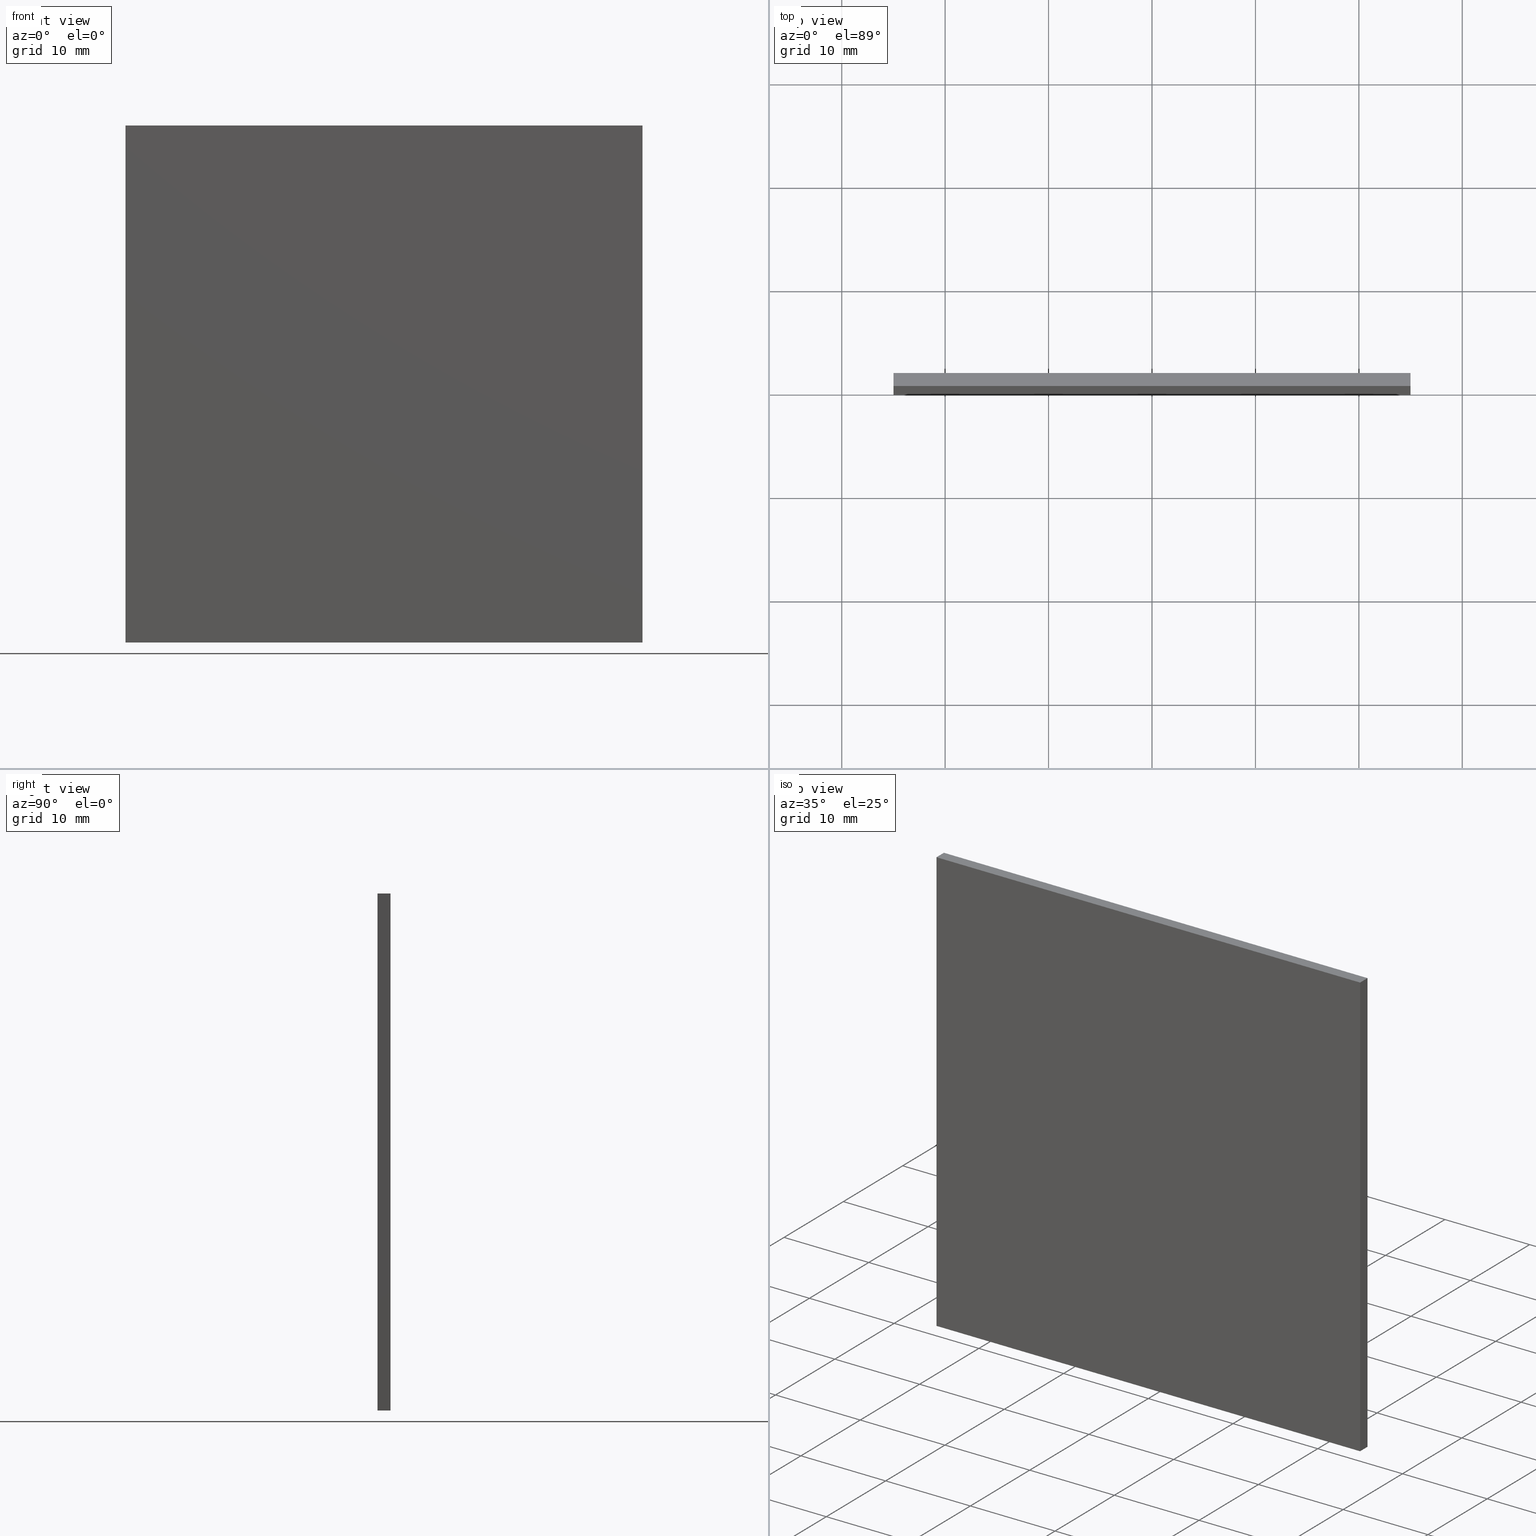
[diagram: canonical four-view strip — front | top / right | iso, engineering-drawing reading convention]
A machine part, canonical four-view strip (front | top / right | iso — engineering-drawing reading convention). The complete STEP part file that produces these views, byte-faithful:
ISO-10303-21;
HEADER;
FILE_DESCRIPTION (( 'STEP AP214' ),
    '1' );
FILE_NAME ('248619.STEP',
    '2019-08-06T06:50:13',
    ( 'user' ),
    ( '΢���й�' ),
    'SwSTEP 2.0',
    'SolidWorks 2016',
    '' );
FILE_SCHEMA (( 'AUTOMOTIVE_DESIGN' ));
ENDSEC;

DATA;
#1 = VECTOR ( 'NONE', #69, 1000.000000000000000 ) ;
#2 = VECTOR ( 'NONE', #171, 1000.000000000000000 ) ;
#3 = VECTOR ( 'NONE', #92, 1000.000000000000000 ) ;
#4 = LINE ( 'NONE', #67, #116 ) ;
#5 = EDGE_CURVE ( 'NONE', #188, #42, #57, .T. ) ;
#6 = PRODUCT_DEFINITION_SHAPE ( 'NONE', 'NONE',  #44 ) ;
#7 = VECTOR ( 'NONE', #97, 1000.000000000000000 ) ;
#8 = ADVANCED_FACE ( 'NONE', ( #71 ), #172, .F. ) ;
#9 = PRODUCT_RELATED_PRODUCT_CATEGORY ( 'part', '', ( #112 ) ) ;
#10 = SURFACE_STYLE_USAGE ( .BOTH. , #80 ) ;
#11 = AXIS2_PLACEMENT_3D ( 'NONE', #123, #194, #175 ) ;
#12 =( NAMED_UNIT ( * ) PLANE_ANGLE_UNIT ( ) SI_UNIT ( $, .RADIAN. ) );
#13 = EDGE_LOOP ( 'NONE', ( #152, #66, #130, #122 ) ) ;
#14 = VERTEX_POINT ( 'NONE', #107 ) ;
#15 = DIRECTION ( 'NONE',  ( 1.000000000000000000, -0.0000000000000000000, 0.0000000000000000000 ) ) ;
#16 = EDGE_CURVE ( 'NONE', #163, #188, #79, .T. ) ;
#17 = LINE ( 'NONE', #201, #136 ) ;
#18 = CARTESIAN_POINT ( 'NONE',  ( 0.0000000000000000000, 0.0000000000000000000, 0.0000000000000000000 ) ) ;
#19 = CLOSED_SHELL ( 'NONE', ( #8, #64, #28, #151, #181, #48 ) ) ;
#20 = PRODUCT_DEFINITION_FORMATION_WITH_SPECIFIED_SOURCE ( '�κ�', '', #112, .NOT_KNOWN. ) ;
#21 = CARTESIAN_POINT ( 'NONE',  ( 25.00000000000000000, 1.250000000000000000, 25.00000000000000000 ) ) ;
#22 = EDGE_CURVE ( 'NONE', #178, #14, #150, .T. ) ;
#23 =( LENGTH_UNIT ( ) NAMED_UNIT ( * ) SI_UNIT ( .MILLI., .METRE. ) );
#24 = VECTOR ( 'NONE', #154, 1000.000000000000000 ) ;
#25 = FACE_OUTER_BOUND ( 'NONE', #13, .T. ) ;
#26 = DIRECTION ( 'NONE',  ( 0.0000000000000000000, 0.0000000000000000000, 1.000000000000000000 ) ) ;
#27 = CARTESIAN_POINT ( 'NONE',  ( 25.00000000000000000, 0.0000000000000000000, -25.00000000000000000 ) ) ;
#28 = ADVANCED_FACE ( 'NONE', ( #37 ), #91, .F. ) ;
#29 = EDGE_CURVE ( 'NONE', #14, #108, #182, .T. ) ;
#30 = CARTESIAN_POINT ( 'NONE',  ( -25.00000000000000000, 0.0000000000000000000, 25.00000000000000000 ) ) ;
#31 = DIRECTION ( 'NONE',  ( 1.000000000000000000, 0.0000000000000000000, -0.0000000000000000000 ) ) ;
#32 = DIRECTION ( 'NONE',  ( -0.0000000000000000000, -1.000000000000000000, -0.0000000000000000000 ) ) ;
#33 = ORIENTED_EDGE ( 'NONE', *, *, #197, .F. ) ;
#34 = LINE ( 'NONE', #173, #47 ) ;
#35 = ORIENTED_EDGE ( 'NONE', *, *, #39, .F. ) ;
#36 = DIRECTION ( 'NONE',  ( 0.0000000000000000000, 0.0000000000000000000, 1.000000000000000000 ) ) ;
#37 = FACE_OUTER_BOUND ( 'NONE', #81, .T. ) ;
#38 = FACE_OUTER_BOUND ( 'NONE', #50, .T. ) ;
#39 = EDGE_CURVE ( 'NONE', #178, #163, #134, .T. ) ;
#40 = LINE ( 'NONE', #170, #2 ) ;
#41 = EDGE_LOOP ( 'NONE', ( #156, #73, #147, #60 ) ) ;
#42 = VERTEX_POINT ( 'NONE', #137 ) ;
#43 = LINE ( 'NONE', #111, #77 ) ;
#44 = PRODUCT_DEFINITION ( 'δ֪', '', #20, #58 ) ;
#45 = EDGE_CURVE ( 'NONE', #42, #98, #40, .T. ) ;
#46 = EDGE_LOOP ( 'NONE', ( #142, #200, #115, #117 ) ) ;
#47 = VECTOR ( 'NONE', #54, 1000.000000000000000 ) ;
#48 = ADVANCED_FACE ( 'NONE', ( #110 ), #139, .T. ) ;
#49 =( GEOMETRIC_REPRESENTATION_CONTEXT ( 3 ) GLOBAL_UNCERTAINTY_ASSIGNED_CONTEXT ( ( #93 ) ) GLOBAL_UNIT_ASSIGNED_CONTEXT ( ( #157, #159, #183 ) ) REPRESENTATION_CONTEXT ( 'NONE', 'WORKASPACE' ) );
#50 = EDGE_LOOP ( 'NONE', ( #166, #140, #106, #191 ) ) ;
#51 = PRESENTATION_LAYER_ASSIGNMENT (  '', '', ( #155 ) ) ;
#52 = EDGE_CURVE ( 'NONE', #98, #163, #82, .T. ) ;
#53 = DIRECTION ( 'NONE',  ( -0.0000000000000000000, -1.000000000000000000, -0.0000000000000000000 ) ) ;
#54 = DIRECTION ( 'NONE',  ( 0.0000000000000000000, 0.0000000000000000000, -1.000000000000000000 ) ) ;
#55 = CARTESIAN_POINT ( 'NONE',  ( 0.0000000000000000000, 0.0000000000000000000, 0.0000000000000000000 ) ) ;
#56 = PLANE ( 'NONE',  #144 ) ;
#57 = LINE ( 'NONE', #143, #3 ) ;
#58 = PRODUCT_DEFINITION_CONTEXT ( 'detailed design', #158, 'design' ) ;
#59 =( GEOMETRIC_REPRESENTATION_CONTEXT ( 3 ) GLOBAL_UNCERTAINTY_ASSIGNED_CONTEXT ( ( #167 ) ) GLOBAL_UNIT_ASSIGNED_CONTEXT ( ( #23, #192, #153 ) ) REPRESENTATION_CONTEXT ( 'NONE', 'WORKASPACE' ) );
#60 = ORIENTED_EDGE ( 'NONE', *, *, #186, .T. ) ;
#61 = ADVANCED_BREP_SHAPE_REPRESENTATION ( '248619', ( #104, #196 ), #131 ) ;
#62 = DIRECTION ( 'NONE',  ( -1.000000000000000000, -0.0000000000000000000, -0.0000000000000000000 ) ) ;
#63 = PLANE ( 'NONE',  #11 ) ;
#64 = ADVANCED_FACE ( 'NONE', ( #129 ), #76, .F. ) ;
#65 = DIRECTION ( 'NONE',  ( 0.0000000000000000000, 0.0000000000000000000, 1.000000000000000000 ) ) ;
#66 = ORIENTED_EDGE ( 'NONE', *, *, #186, .F. ) ;
#67 = CARTESIAN_POINT ( 'NONE',  ( 25.00000000000000000, 1.250000000000000000, 25.00000000000000000 ) ) ;
#68 = CARTESIAN_POINT ( 'NONE',  ( -25.00000000000000000, 0.0000000000000000000, 25.00000000000000000 ) ) ;
#69 = DIRECTION ( 'NONE',  ( -0.0000000000000000000, -0.0000000000000000000, 1.000000000000000000 ) ) ;
#70 = ORIENTED_EDGE ( 'NONE', *, *, #189, .T. ) ;
#71 = FACE_OUTER_BOUND ( 'NONE', #41, .T. ) ;
#72 = MECHANICAL_DESIGN_GEOMETRIC_PRESENTATION_REPRESENTATION (  '', ( #148 ), #59 ) ;
#73 = ORIENTED_EDGE ( 'NONE', *, *, #189, .F. ) ;
#74 = CARTESIAN_POINT ( 'NONE',  ( -25.00000000000000000, 1.250000000000000000, -25.00000000000000000 ) ) ;
#75 = DIRECTION ( 'NONE',  ( 0.0000000000000000000, 0.0000000000000000000, -1.000000000000000000 ) ) ;
#76 = PLANE ( 'NONE',  #99 ) ;
#77 = VECTOR ( 'NONE', #32, 1000.000000000000000 ) ;
#78 = FILL_AREA_STYLE_COLOUR ( '', #100 ) ;
#79 = LINE ( 'NONE', #68, #160 ) ;
#80 = SURFACE_SIDE_STYLE ('',( #88 ) ) ;
#81 = EDGE_LOOP ( 'NONE', ( #90, #33, #187, #180 ) ) ;
#82 = LINE ( 'NONE', #102, #190 ) ;
#83 = ORIENTED_EDGE ( 'NONE', *, *, #52, .T. ) ;
#84 = CARTESIAN_POINT ( 'NONE',  ( -25.00000000000000000, 1.250000000000000000, -25.00000000000000000 ) ) ;
#85 = DIRECTION ( 'NONE',  ( 0.0000000000000000000, -1.000000000000000000, 0.0000000000000000000 ) ) ;
#86 = VECTOR ( 'NONE', #62, 1000.000000000000000 ) ;
#87 = DIRECTION ( 'NONE',  ( -0.0000000000000000000, -0.0000000000000000000, 1.000000000000000000 ) ) ;
#88 = SURFACE_STYLE_FILL_AREA ( #94 ) ;
#89 = DIRECTION ( 'NONE',  ( -0.0000000000000000000, -1.000000000000000000, -0.0000000000000000000 ) ) ;
#90 = ORIENTED_EDGE ( 'NONE', *, *, #16, .T. ) ;
#91 = PLANE ( 'NONE',  #133 ) ;
#92 = DIRECTION ( 'NONE',  ( 1.000000000000000000, 0.0000000000000000000, 0.0000000000000000000 ) ) ;
#93 = UNCERTAINTY_MEASURE_WITH_UNIT (LENGTH_MEASURE( 1.000000000000000100E-005 ), #157, 'distance_accuracy_value', 'NONE');
#94 = FILL_AREA_STYLE ('',( #141 ) ) ;
#95 = EDGE_CURVE ( 'NONE', #108, #135, #34, .T. ) ;
#96 = COLOUR_RGB ( '',1.000000000000000000, 1.000000000000000000, 1.000000000000000000 ) ;
#97 = DIRECTION ( 'NONE',  ( -0.0000000000000000000, -1.000000000000000000, -0.0000000000000000000 ) ) ;
#98 = VERTEX_POINT ( 'NONE', #27 ) ;
#99 = AXIS2_PLACEMENT_3D ( 'NONE', #125, #65, #31 ) ;
#100 = COLOUR_RGB ( '',1.000000000000000000, 1.000000000000000000, 1.000000000000000000 ) ;
#101 = FILL_AREA_STYLE ('',( #78 ) ) ;
#102 = CARTESIAN_POINT ( 'NONE',  ( -25.00000000000000000, 0.0000000000000000000, -25.00000000000000000 ) ) ;
#103 = DIRECTION ( 'NONE',  ( -1.000000000000000000, 0.0000000000000000000, -0.0000000000000000000 ) ) ;
#104 = MANIFOLD_SOLID_BREP ( '͹̨-����1', #19 ) ;
#105 = SURFACE_STYLE_USAGE ( .BOTH. , #176 ) ;
#106 = ORIENTED_EDGE ( 'NONE', *, *, #22, .T. ) ;
#107 = CARTESIAN_POINT ( 'NONE',  ( -25.00000000000000000, 1.250000000000000000, 25.00000000000000000 ) ) ;
#108 = VERTEX_POINT ( 'NONE', #21 ) ;
#109 = DIRECTION ( 'NONE',  ( 0.0000000000000000000, 0.0000000000000000000, -1.000000000000000000 ) ) ;
#110 = FACE_OUTER_BOUND ( 'NONE', #46, .T. ) ;
#111 = CARTESIAN_POINT ( 'NONE',  ( 25.00000000000000000, 1.250000000000000000, -25.00000000000000000 ) ) ;
#112 = PRODUCT ( '248619', '248619', '', ( #124 ) ) ;
#113 = AXIS2_PLACEMENT_3D ( 'NONE', #18, #85, #161 ) ;
#114 = EDGE_LOOP ( 'NONE', ( #83, #35, #185, #70 ) ) ;
#115 = ORIENTED_EDGE ( 'NONE', *, *, #16, .F. ) ;
#116 = VECTOR ( 'NONE', #89, 1000.000000000000000 ) ;
#117 = ORIENTED_EDGE ( 'NONE', *, *, #52, .F. ) ;
#118 = CARTESIAN_POINT ( 'NONE',  ( -25.00000000000000000, 1.250000000000000000, 25.00000000000000000 ) ) ;
#119 = CARTESIAN_POINT ( 'NONE',  ( -25.00000000000000000, 1.250000000000000000, 25.00000000000000000 ) ) ;
#120 = DIRECTION ( 'NONE',  ( -1.000000000000000000, -0.0000000000000000000, -0.0000000000000000000 ) ) ;
#121 = CARTESIAN_POINT ( 'NONE',  ( -25.00000000000000000, 0.0000000000000000000, -25.00000000000000000 ) ) ;
#122 = ORIENTED_EDGE ( 'NONE', *, *, #197, .T. ) ;
#123 = CARTESIAN_POINT ( 'NONE',  ( 0.0000000000000000000, 1.250000000000000000, 0.0000000000000000000 ) ) ;
#124 = PRODUCT_CONTEXT ( 'NONE', #198, 'mechanical' ) ;
#125 = CARTESIAN_POINT ( 'NONE',  ( -25.00000000000000000, 1.250000000000000000, -25.00000000000000000 ) ) ;
#126 = DIRECTION ( 'NONE',  ( 1.000000000000000000, 0.0000000000000000000, 0.0000000000000000000 ) ) ;
#127 =( LENGTH_UNIT ( ) NAMED_UNIT ( * ) SI_UNIT ( .MILLI., .METRE. ) );
#128 = CARTESIAN_POINT ( 'NONE',  ( -25.00000000000000000, 1.250000000000000000, -25.00000000000000000 ) ) ;
#129 = FACE_OUTER_BOUND ( 'NONE', #114, .T. ) ;
#130 = ORIENTED_EDGE ( 'NONE', *, *, #29, .F. ) ;
#131 =( GEOMETRIC_REPRESENTATION_CONTEXT ( 3 ) GLOBAL_UNCERTAINTY_ASSIGNED_CONTEXT ( ( #202 ) ) GLOBAL_UNIT_ASSIGNED_CONTEXT ( ( #127, #12, #168 ) ) REPRESENTATION_CONTEXT ( 'NONE', 'WORKASPACE' ) );
#132 = PRESENTATION_STYLE_ASSIGNMENT (( #105 ) ) ;
#133 = AXIS2_PLACEMENT_3D ( 'NONE', #119, #15, #75 ) ;
#134 = LINE ( 'NONE', #84, #7 ) ;
#135 = VERTEX_POINT ( 'NONE', #174 ) ;
#136 = VECTOR ( 'NONE', #53, 1000.000000000000000 ) ;
#137 = CARTESIAN_POINT ( 'NONE',  ( 25.00000000000000000, 0.0000000000000000000, 25.00000000000000000 ) ) ;
#138 = AXIS2_PLACEMENT_3D ( 'NONE', #145, #199, #36 ) ;
#139 = PLANE ( 'NONE',  #113 ) ;
#140 = ORIENTED_EDGE ( 'NONE', *, *, #149, .T. ) ;
#141 = FILL_AREA_STYLE_COLOUR ( '', #96 ) ;
#142 = ORIENTED_EDGE ( 'NONE', *, *, #45, .F. ) ;
#143 = CARTESIAN_POINT ( 'NONE',  ( -25.00000000000000000, 0.0000000000000000000, 25.00000000000000000 ) ) ;
#144 = AXIS2_PLACEMENT_3D ( 'NONE', #118, #109, #103 ) ;
#145 = CARTESIAN_POINT ( 'NONE',  ( 25.00000000000000000, 1.250000000000000000, 25.00000000000000000 ) ) ;
#146 = CARTESIAN_POINT ( 'NONE',  ( -25.00000000000000000, 1.250000000000000000, 25.00000000000000000 ) ) ;
#147 = ORIENTED_EDGE ( 'NONE', *, *, #95, .F. ) ;
#148 = STYLED_ITEM ( 'NONE', ( #179 ), #61 ) ;
#149 = EDGE_CURVE ( 'NONE', #135, #178, #164, .T. ) ;
#150 = LINE ( 'NONE', #184, #1 ) ;
#151 = ADVANCED_FACE ( 'NONE', ( #25 ), #56, .F. ) ;
#152 = ORIENTED_EDGE ( 'NONE', *, *, #5, .T. ) ;
#153 =( NAMED_UNIT ( * ) SI_UNIT ( $, .STERADIAN. ) SOLID_ANGLE_UNIT ( ) );
#154 = DIRECTION ( 'NONE',  ( 1.000000000000000000, 0.0000000000000000000, 0.0000000000000000000 ) ) ;
#155 = STYLED_ITEM ( 'NONE', ( #132 ), #104 ) ;
#156 = ORIENTED_EDGE ( 'NONE', *, *, #45, .T. ) ;
#157 =( LENGTH_UNIT ( ) NAMED_UNIT ( * ) SI_UNIT ( .MILLI., .METRE. ) );
#158 = APPLICATION_CONTEXT ( 'automotive_design' ) ;
#159 =( NAMED_UNIT ( * ) PLANE_ANGLE_UNIT ( ) SI_UNIT ( $, .RADIAN. ) );
#160 = VECTOR ( 'NONE', #87, 1000.000000000000000 ) ;
#161 = DIRECTION ( 'NONE',  ( 0.0000000000000000000, -0.0000000000000000000, -1.000000000000000000 ) ) ;
#162 = SURFACE_STYLE_FILL_AREA ( #101 ) ;
#163 = VERTEX_POINT ( 'NONE', #121 ) ;
#164 = LINE ( 'NONE', #74, #86 ) ;
#165 = MECHANICAL_DESIGN_GEOMETRIC_PRESENTATION_REPRESENTATION (  '', ( #155 ), #49 ) ;
#166 = ORIENTED_EDGE ( 'NONE', *, *, #95, .T. ) ;
#167 = UNCERTAINTY_MEASURE_WITH_UNIT (LENGTH_MEASURE( 1.000000000000000100E-005 ), #23, 'distance_accuracy_value', 'NONE');
#168 =( NAMED_UNIT ( * ) SI_UNIT ( $, .STERADIAN. ) SOLID_ANGLE_UNIT ( ) );
#169 = APPLICATION_PROTOCOL_DEFINITION ( 'draft international standard', 'automotive_design', 1998, #198 ) ;
#170 = CARTESIAN_POINT ( 'NONE',  ( 25.00000000000000000, 0.0000000000000000000, 25.00000000000000000 ) ) ;
#171 = DIRECTION ( 'NONE',  ( 0.0000000000000000000, 0.0000000000000000000, -1.000000000000000000 ) ) ;
#172 = PLANE ( 'NONE',  #138 ) ;
#173 = CARTESIAN_POINT ( 'NONE',  ( 25.00000000000000000, 1.250000000000000000, 25.00000000000000000 ) ) ;
#174 = CARTESIAN_POINT ( 'NONE',  ( 25.00000000000000000, 1.250000000000000000, -25.00000000000000000 ) ) ;
#175 = DIRECTION ( 'NONE',  ( 0.0000000000000000000, -0.0000000000000000000, -1.000000000000000000 ) ) ;
#176 = SURFACE_SIDE_STYLE ('',( #162 ) ) ;
#177 = PRESENTATION_LAYER_ASSIGNMENT (  '', '', ( #148 ) ) ;
#178 = VERTEX_POINT ( 'NONE', #128 ) ;
#179 = PRESENTATION_STYLE_ASSIGNMENT (( #10 ) ) ;
#180 = ORIENTED_EDGE ( 'NONE', *, *, #39, .T. ) ;
#181 = ADVANCED_FACE ( 'NONE', ( #38 ), #63, .F. ) ;
#182 = LINE ( 'NONE', #146, #24 ) ;
#183 =( NAMED_UNIT ( * ) SI_UNIT ( $, .STERADIAN. ) SOLID_ANGLE_UNIT ( ) );
#184 = CARTESIAN_POINT ( 'NONE',  ( -25.00000000000000000, 1.250000000000000000, 25.00000000000000000 ) ) ;
#185 = ORIENTED_EDGE ( 'NONE', *, *, #149, .F. ) ;
#186 = EDGE_CURVE ( 'NONE', #108, #42, #4, .T. ) ;
#187 = ORIENTED_EDGE ( 'NONE', *, *, #22, .F. ) ;
#188 = VERTEX_POINT ( 'NONE', #30 ) ;
#189 = EDGE_CURVE ( 'NONE', #135, #98, #43, .T. ) ;
#190 = VECTOR ( 'NONE', #120, 1000.000000000000000 ) ;
#191 = ORIENTED_EDGE ( 'NONE', *, *, #29, .T. ) ;
#192 =( NAMED_UNIT ( * ) PLANE_ANGLE_UNIT ( ) SI_UNIT ( $, .RADIAN. ) );
#193 = SHAPE_DEFINITION_REPRESENTATION ( #6, #61 ) ;
#194 = DIRECTION ( 'NONE',  ( 0.0000000000000000000, -1.000000000000000000, 0.0000000000000000000 ) ) ;
#195 = APPLICATION_PROTOCOL_DEFINITION ( 'draft international standard', 'automotive_design', 1998, #158 ) ;
#196 = AXIS2_PLACEMENT_3D ( 'NONE', #55, #26, #126 ) ;
#197 = EDGE_CURVE ( 'NONE', #14, #188, #17, .T. ) ;
#198 = APPLICATION_CONTEXT ( 'automotive_design' ) ;
#199 = DIRECTION ( 'NONE',  ( -1.000000000000000000, 0.0000000000000000000, 0.0000000000000000000 ) ) ;
#200 = ORIENTED_EDGE ( 'NONE', *, *, #5, .F. ) ;
#201 = CARTESIAN_POINT ( 'NONE',  ( -25.00000000000000000, 1.250000000000000000, 25.00000000000000000 ) ) ;
#202 = UNCERTAINTY_MEASURE_WITH_UNIT (LENGTH_MEASURE( 1.000000000000000100E-005 ), #127, 'distance_accuracy_value', 'NONE');
ENDSEC;
END-ISO-10303-21;
